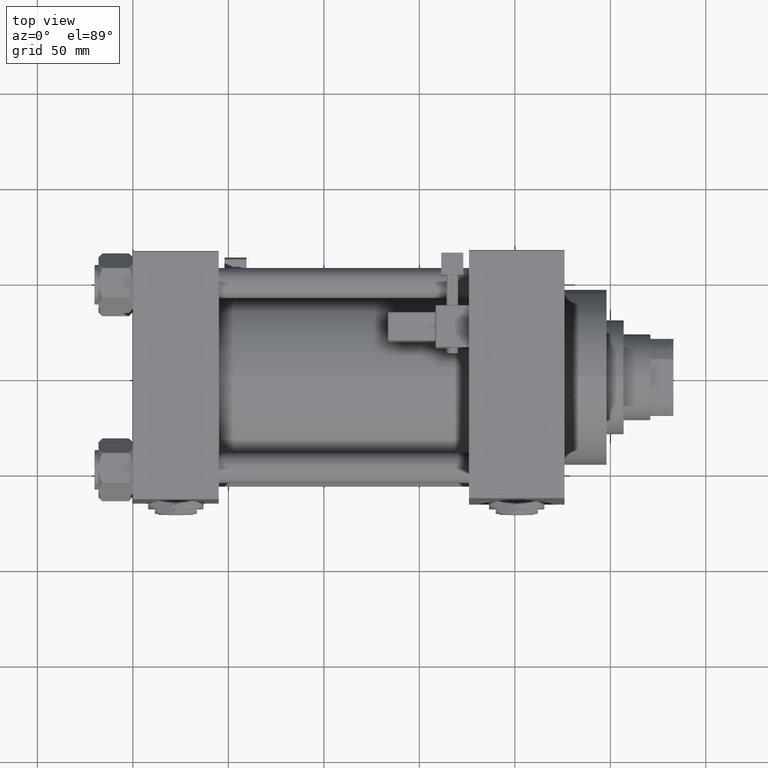
[diagram: clean part render]
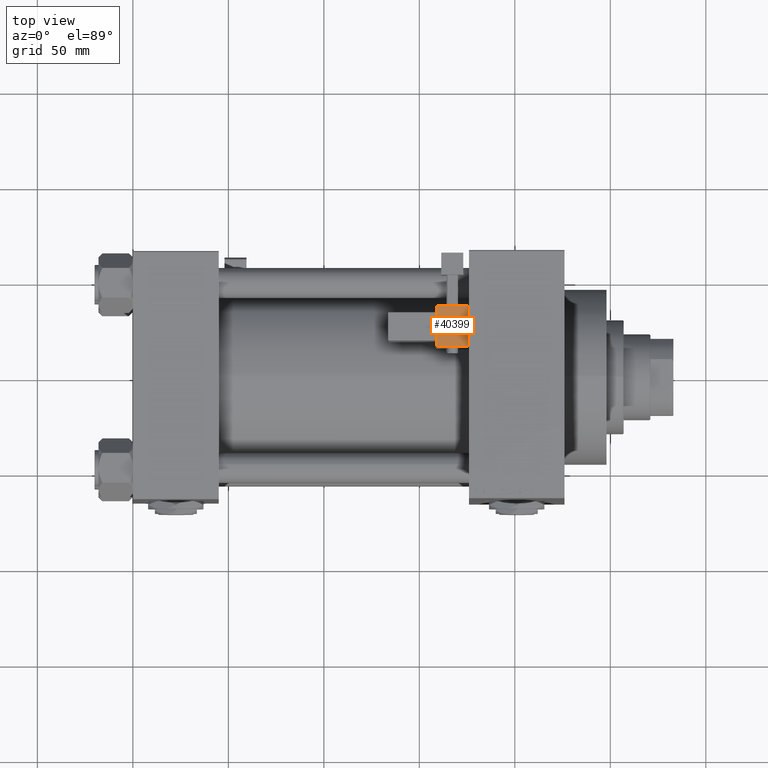
[diagram: same view with one face highlighted and labeled with its STEP entity id]
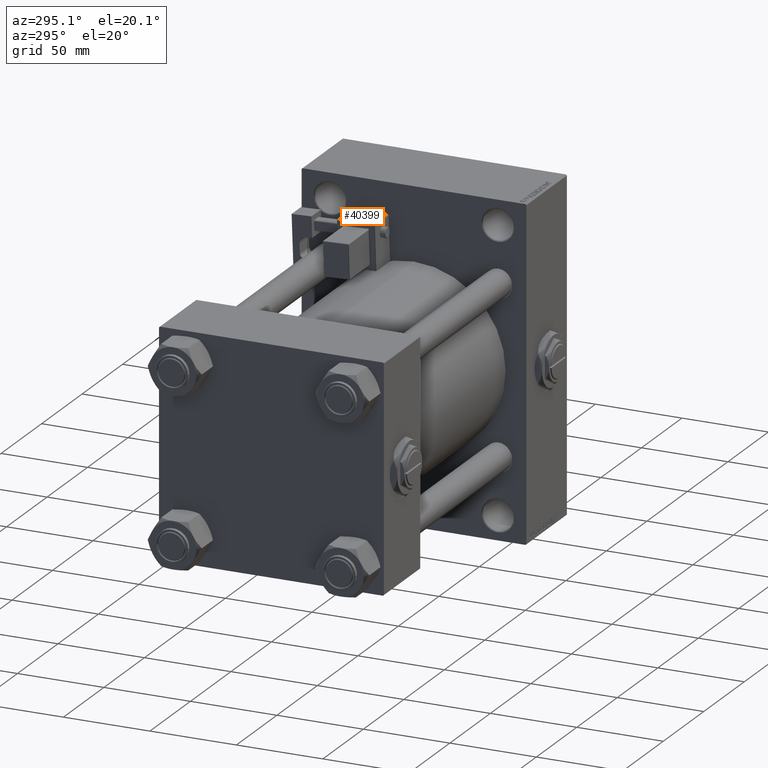
[diagram: same view with one face highlighted and labeled with its STEP entity id]
A machine part, top view. The second image highlights one B-rep face of the part: STEP entity #40399.
A second angle (auxiliary view) of the same face is appended — the face is thin or edge-on in the first view.
In plain terms, the highlighted planar face has unit normal (0, -0.0353, -0.9994).
Its self-contained STEP definition (entity closure, byte-faithful):
#1065 = VECTOR ( 'NONE', #47208, 1000.000000000000000 ) ;
#4819 = CARTESIAN_POINT ( 'NONE',  ( -8.250000000000003553, -43.25000000000000000, -1.000000000000000222 ) ) ;
#6150 = EDGE_CURVE ( 'NONE', #20944, #12796, #31674, .T. ) ;
#6845 = ORIENTED_EDGE ( 'NONE', *, *, #7313, .T. ) ;
#7313 = EDGE_CURVE ( 'NONE', #9491, #20944, #31166, .T. ) ;
#7588 = CARTESIAN_POINT ( 'NONE',  ( -8.250000000000003553, -43.75000000000000000, -1.000000000000000222 ) ) ;
#8294 = VERTEX_POINT ( 'NONE', #9435 ) ;
#9435 = CARTESIAN_POINT ( 'NONE',  ( -8.250000000000003553, -22.25000000000000000, -1.000000000000000222 ) ) ;
#9491 = VERTEX_POINT ( 'NONE', #14865 ) ;
#9856 = EDGE_CURVE ( 'NONE', #12796, #8294, #22815, .T. ) ;
#12796 = VERTEX_POINT ( 'NONE', #4819 ) ;
#12912 = FACE_OUTER_BOUND ( 'NONE', #20514, .T. ) ;
#14865 = CARTESIAN_POINT ( 'NONE',  ( 8.250000000000003553, -22.25000000000000000, -1.000000000000000222 ) ) ;
#14881 = CARTESIAN_POINT ( 'NONE',  ( 8.250000000000003553, -43.75000000000000000, -1.000000000000000222 ) ) ;
#15147 = DIRECTION ( 'NONE',  ( 1.000000000000000000, -0.000000000000000000, 0.000000000000000000 ) ) ;
#19526 = ORIENTED_EDGE ( 'NONE', *, *, #6150, .T. ) ;
#20514 = EDGE_LOOP ( 'NONE', ( #51732, #6845, #19526, #37185 ) ) ;
#20944 = VERTEX_POINT ( 'NONE', #36835 ) ;
#22815 = LINE ( 'NONE', #7588, #33840 ) ;
#26705 = CARTESIAN_POINT ( 'NONE',  ( 8.750000000000003553, -22.25000000000000000, -1.000000000000000222 ) ) ;
#31166 = LINE ( 'NONE', #14881, #1065 ) ;
#31674 = LINE ( 'NONE', #46205, #36225 ) ;
#32370 = DIRECTION ( 'NONE',  ( 1.000000000000000000, 0.000000000000000000, -0.000000000000000000 ) ) ;
#33840 = VECTOR ( 'NONE', #35177, 1000.000000000000000 ) ;
#35177 = DIRECTION ( 'NONE',  ( -0.000000000000000000, 1.000000000000000000, 0.000000000000000000 ) ) ;
#36225 = VECTOR ( 'NONE', #47194, 1000.000000000000000 ) ;
#36835 = CARTESIAN_POINT ( 'NONE',  ( 8.250000000000003553, -43.25000000000000000, -1.000000000000000222 ) ) ;
#37083 = CARTESIAN_POINT ( 'NONE',  ( 8.750000000000003553, -43.75000000000000000, -1.000000000000000222 ) ) ;
#37185 = ORIENTED_EDGE ( 'NONE', *, *, #9856, .T. ) ;
#39579 = LINE ( 'NONE', #26705, #49243 ) ;
#40399 = ADVANCED_FACE ( 'NONE', ( #12912 ), #45485, .F. ) ;
#42377 = AXIS2_PLACEMENT_3D ( 'NONE', #37083, #44721, #32370 ) ;
#44721 = DIRECTION ( 'NONE',  ( 0.000000000000000000, 0.000000000000000000, 1.000000000000000000 ) ) ;
#45485 = PLANE ( 'NONE',  #42377 ) ;
#46205 = CARTESIAN_POINT ( 'NONE',  ( 8.750000000000003553, -43.25000000000000000, -1.000000000000000222 ) ) ;
#47194 = DIRECTION ( 'NONE',  ( -1.000000000000000000, -0.000000000000000000, 0.000000000000000000 ) ) ;
#47208 = DIRECTION ( 'NONE',  ( -0.000000000000000000, -1.000000000000000000, -0.000000000000000000 ) ) ;
#47571 = EDGE_CURVE ( 'NONE', #8294, #9491, #39579, .T. ) ;
#49243 = VECTOR ( 'NONE', #15147, 1000.000000000000000 ) ;
#51732 = ORIENTED_EDGE ( 'NONE', *, *, #47571, .T. ) ;